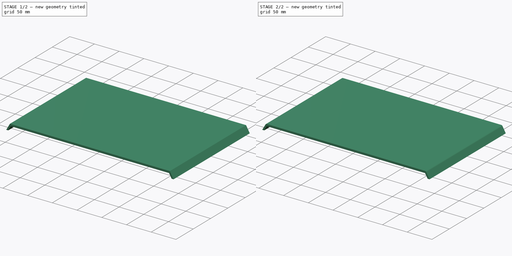
[diagram: build sequence overview — one tinted view per stage of 2, left to right]
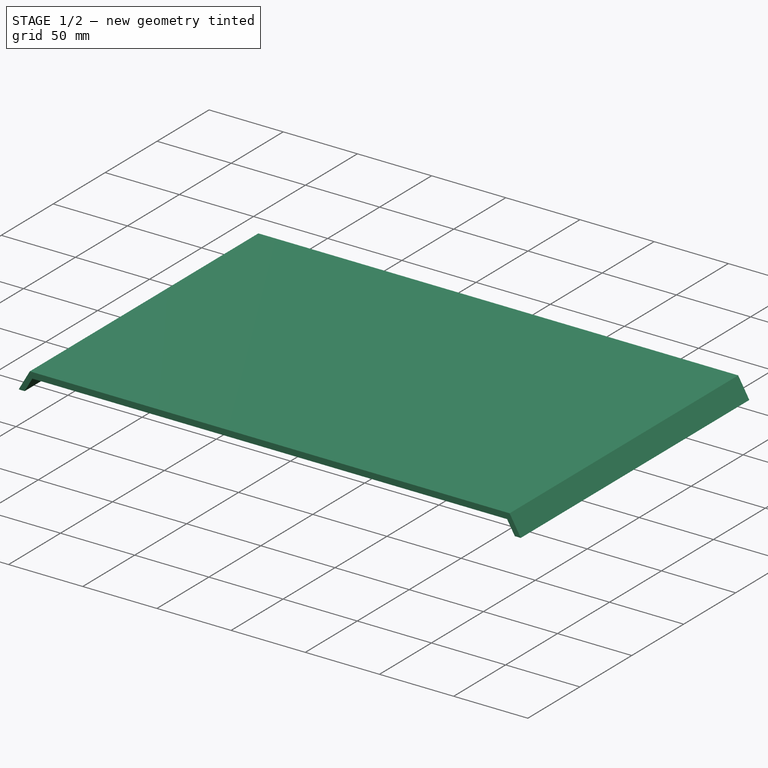
[diagram: stage 1 of 2 — iso view after this stage's code; geometry added in this stage tinted green]
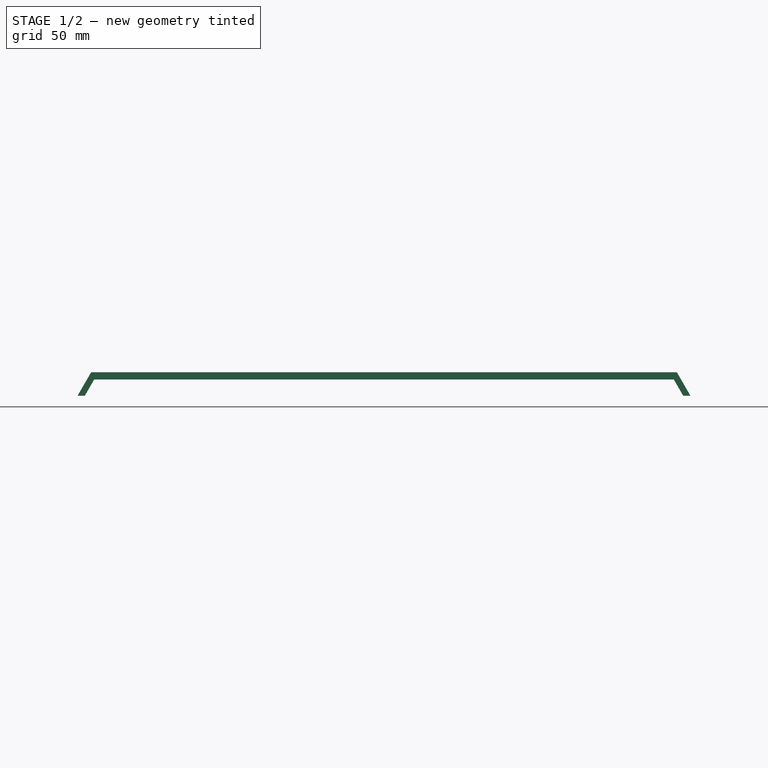
[diagram: stage 1 of 2 — front view after this stage's code; geometry added in this stage tinted green]
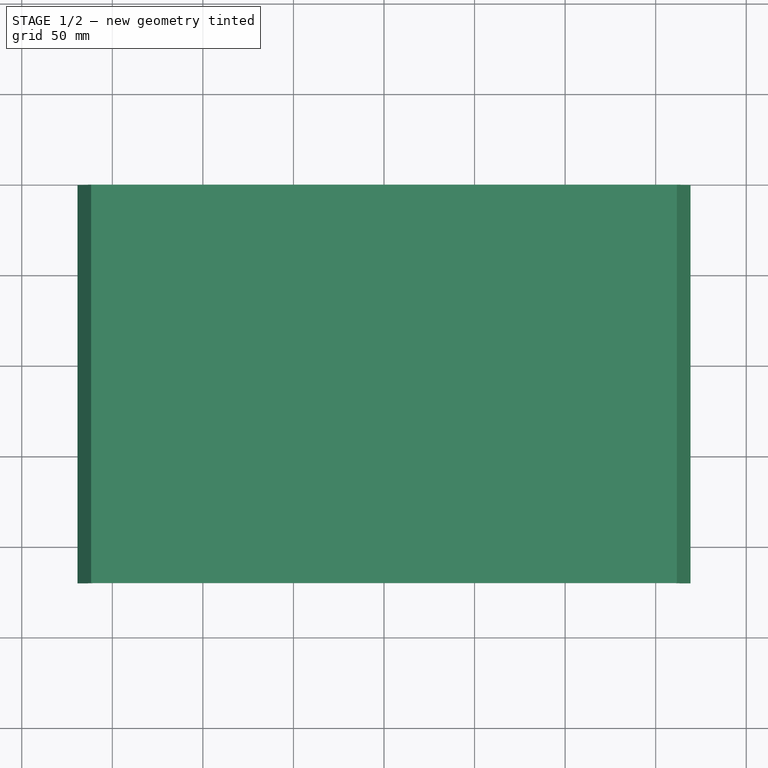
[diagram: stage 1 of 2 — top view after this stage's code; geometry added in this stage tinted green]
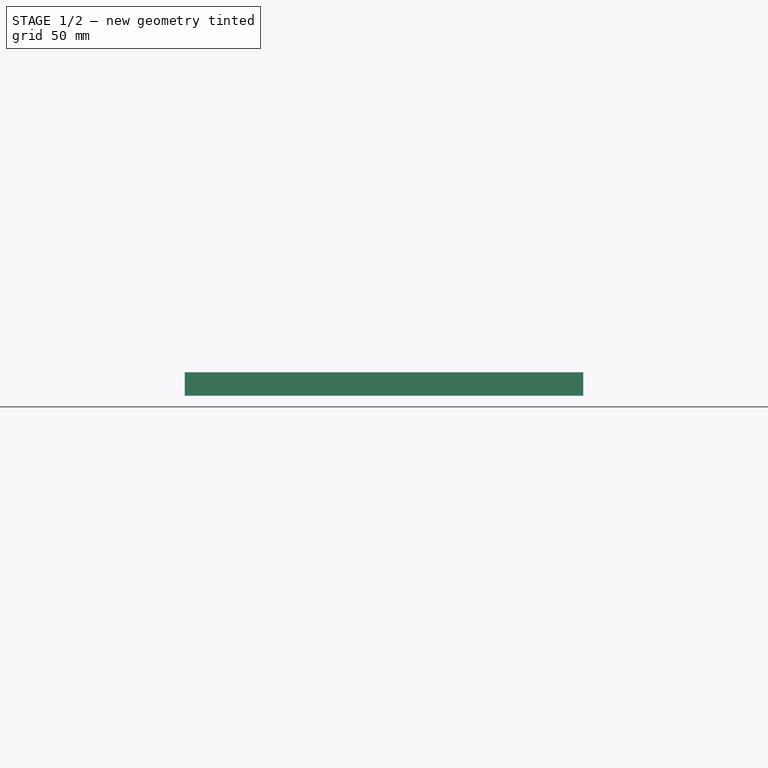
[diagram: stage 1 of 2 — right view after this stage's code; geometry added in this stage tinted green]
FCSTD DOCUMENT  (FreeCAD 0.16R6698 (Git))
Label: bed
License: All rights reserved
LicenseURL: http://de.wikipedia.org/wiki/Alle_Rechte_vorbehalten
objects: Sketcher::SketchObject×1, PartDesign::Pad×1, PartDesign::Fillet×1, Part::Feature×1
note: 5 computed .brp shape members not serialized (recipe doc carries the construction recipe); baked Part::Feature solids carry a one-line shape summary decoded from their .brp

FEATURE [Sketcher::SketchObject] Sketch
  Placement = pos=(0,0,0) rot=(1,0,0;1.5708rad)
  sketch-geometry (8):
    g0: LineSegment StartX=-169.191 StartY=0 StartZ=0 EndX=-165.191 EndY=0 EndZ=0
    g1: LineSegment StartX=-165.191 StartY=0 StartZ=0 EndX=-160 EndY=8.99038 EndZ=0
    g2: LineSegment StartX=-160 StartY=8.99038 StartZ=0 EndX=160 EndY=8.99038 EndZ=0
    g3: LineSegment StartX=160 StartY=8.99038 StartZ=0 EndX=165.191 EndY=0 EndZ=0
    g4: LineSegment StartX=165.191 StartY=0 StartZ=0 EndX=169.191 EndY=0 EndZ=0
    g5: LineSegment StartX=169.191 StartY=0 StartZ=0 EndX=161.691 EndY=12.9904 EndZ=0
    g6: LineSegment StartX=161.691 StartY=12.9904 StartZ=0 EndX=-161.691 EndY=12.9904 EndZ=0
    g7: LineSegment StartX=-161.691 StartY=12.9904 StartZ=0 EndX=-169.191 EndY=0 EndZ=0
  constraints (24):
    c: PointOnObject(g0,g-1)
    c: PointOnObject(g0,g-1)
    c: Coincident(g0,g1)
    c: Coincident(g1,g2)
    c: Horizontal(g2)
    c: Coincident(g2,g3)
    c: Coincident(g3,g4)
    c: Horizontal(g4)
    c: Coincident(g4,g5)
    c: Coincident(g5,g6)
    c: Horizontal(g6)
    c: Coincident(g6,g7)
    c: Equal(g0,g4)
    c: Parallel(g1,g7)
    c: Parallel(g3,g5)
    c: DistanceX(g0,g0) = 4
    c: Symmetric(g5,g6,g-2)
    c: Coincident(g0,g7)
    c: Angle(g1,g2) = 2.0944
    c: DistanceY(g1,g6) = 4
    c: DistanceX(g2,g2) = 320
    c: PointOnObject(g3,g-1)
    c: Angle(g2,g3) = 2.0944
    c: Distance(g7) = 15
FEATURE [PartDesign::Pad] Pad
  Length = 220
  Length2 = 100
  Placement = pos=(0,0,0) rot=(1,0,0;1.5708rad)
  Sketch = -> Sketch
  Type = 0
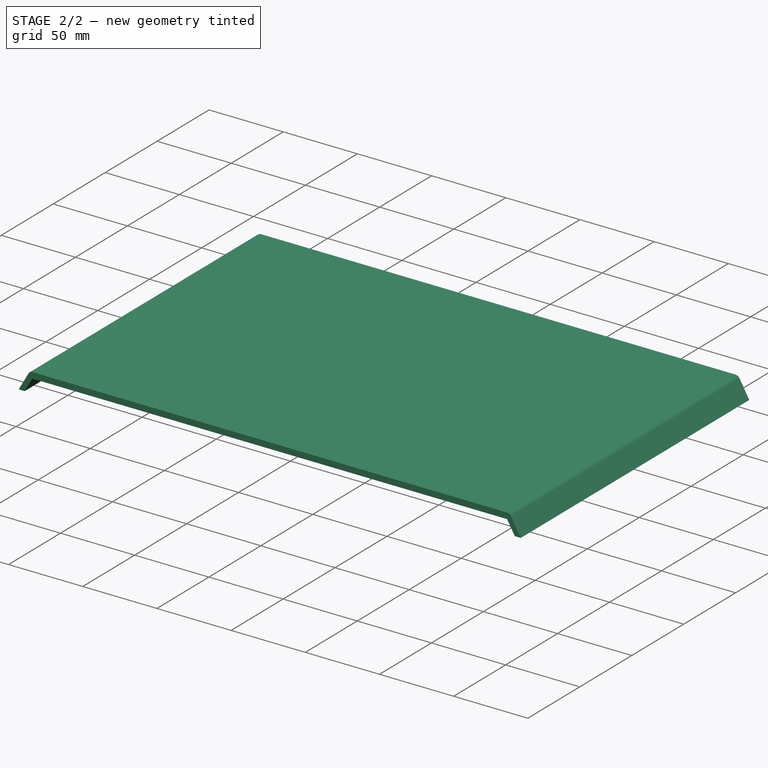
[diagram: stage 2 of 2 — iso view after this stage's code; geometry added in this stage tinted green]
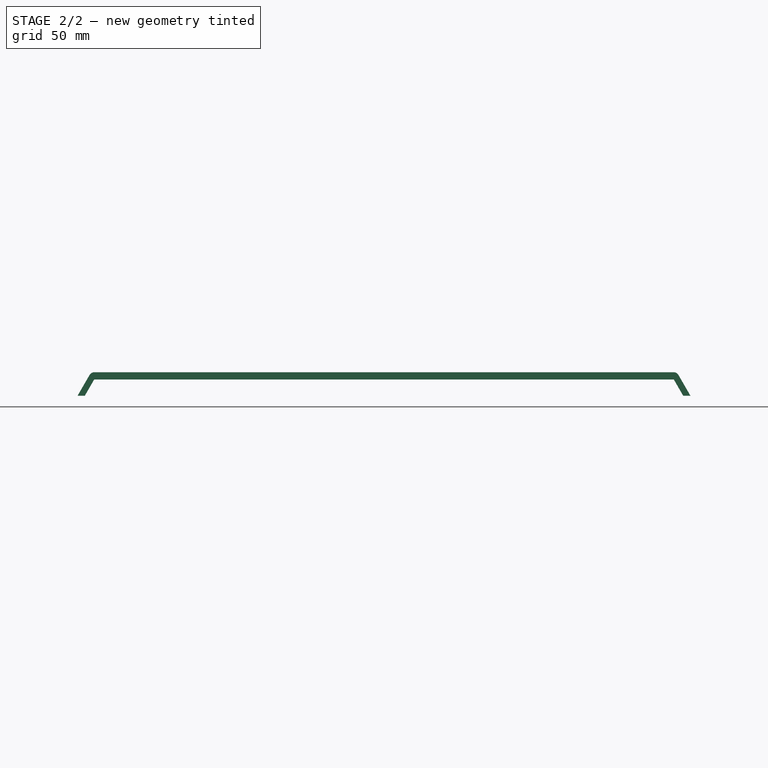
[diagram: stage 2 of 2 — front view after this stage's code; geometry added in this stage tinted green]
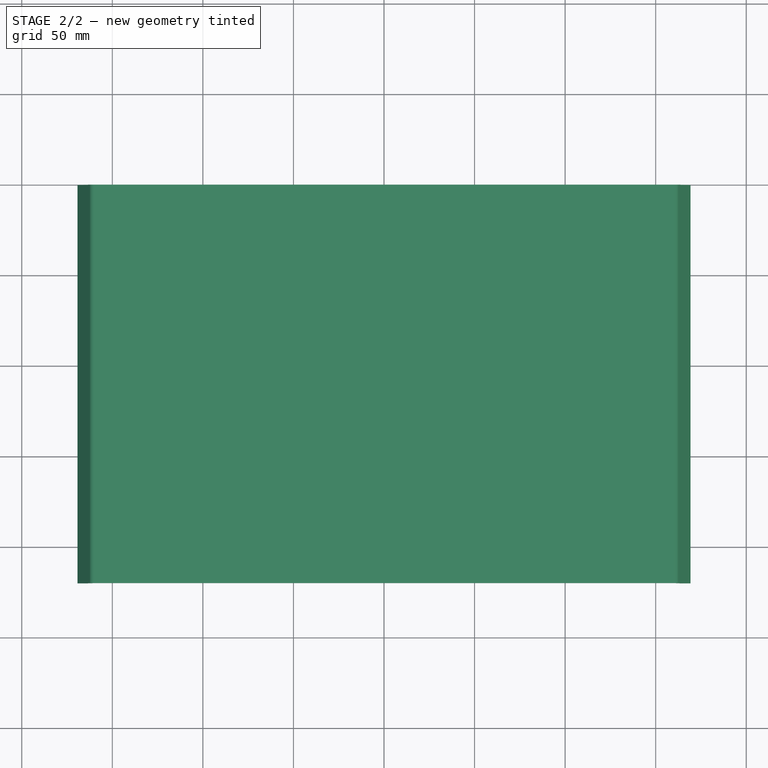
[diagram: stage 2 of 2 — top view after this stage's code; geometry added in this stage tinted green]
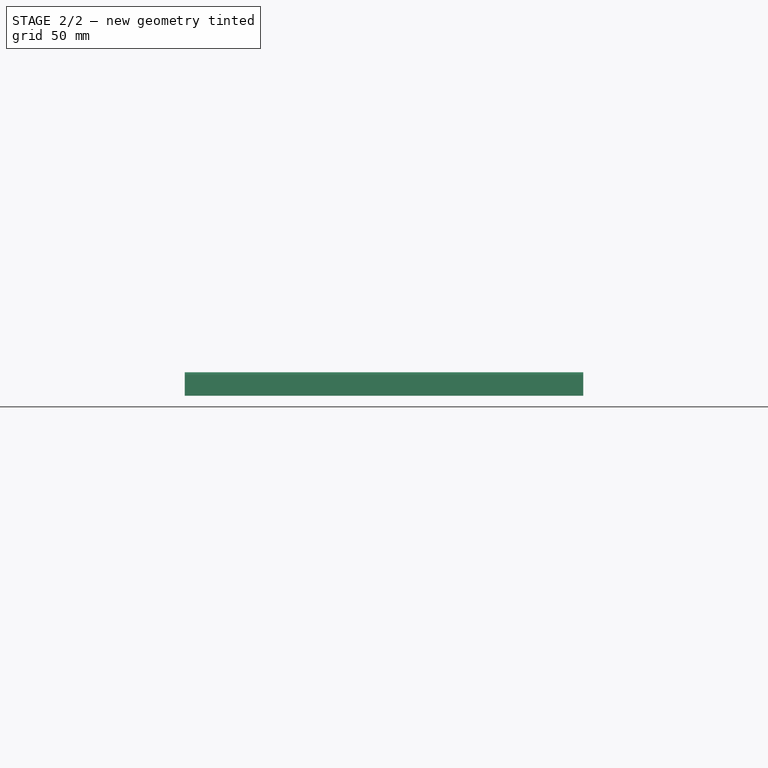
[diagram: stage 2 of 2 — right view after this stage's code; geometry added in this stage tinted green]
FEATURE [PartDesign::Fillet] Fillet
  Base = -> Pad [Edge17,Edge20]
  Placement = pos=(0,0,0) rot=(1,0,0;1.5708rad)
  Radius = 3
FEATURE [Part::Feature] Fillet001  label="Heatbed"
  Placement = pos=(0,0,0) rot=(1,0,0;1.5708rad)
  shape: bbox 338.4 x 220 x 12.99 mm, 12 faces (baked)
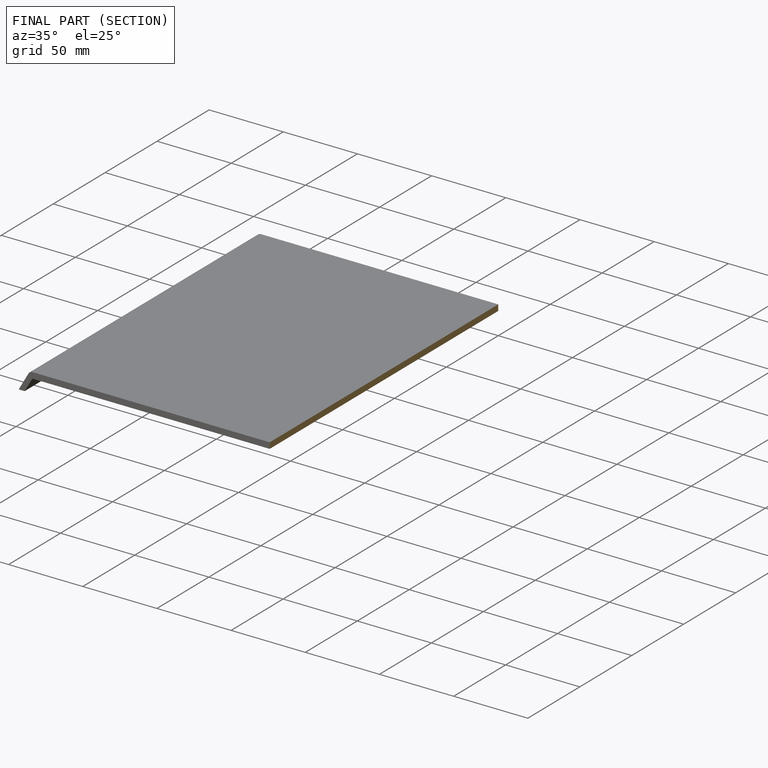
[diagram: finished part — half-section view (interior)]
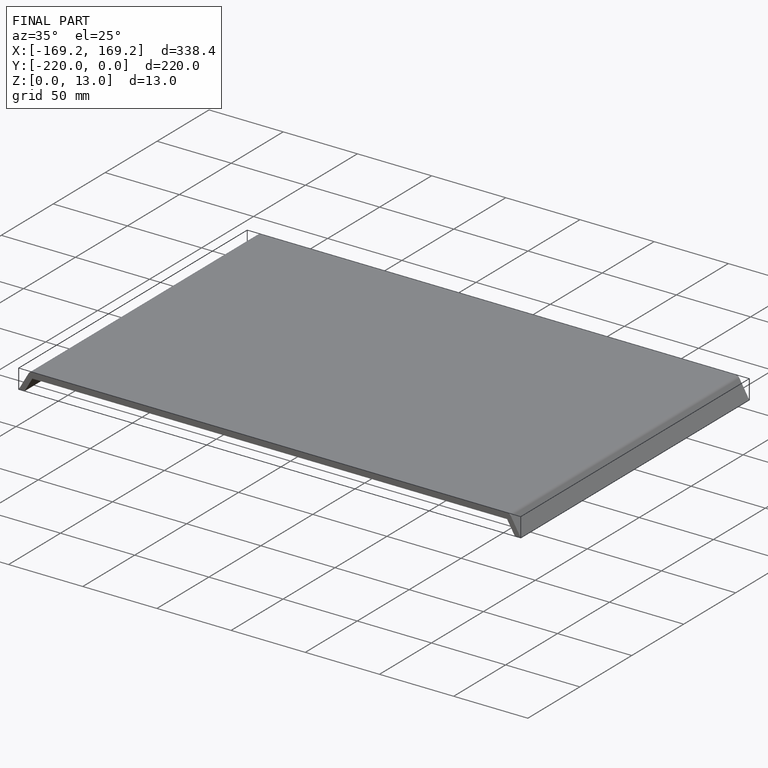
[diagram: finished part — iso view with bounding-box wireframe]
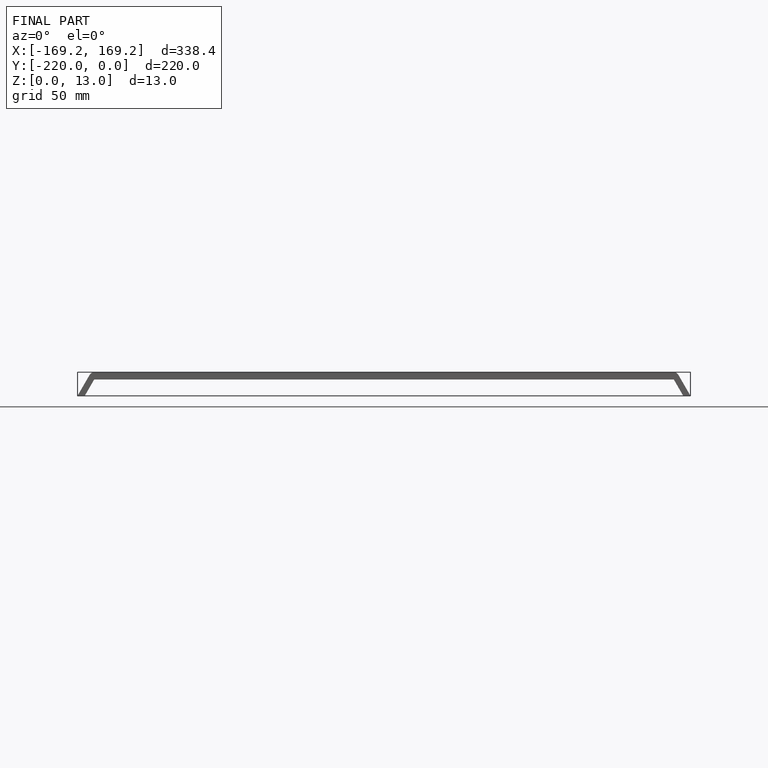
[diagram: finished part — front view with bounding-box wireframe]
